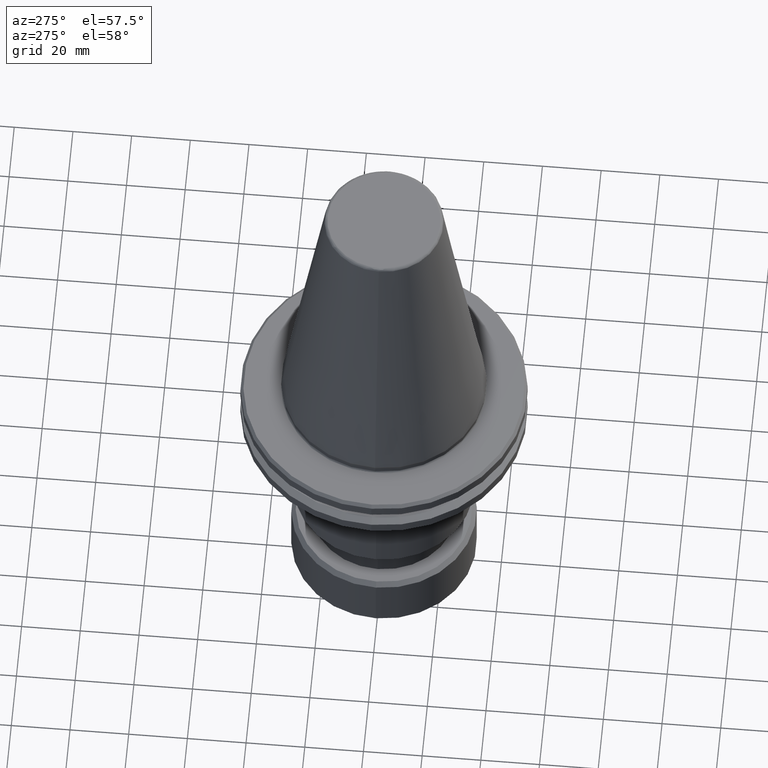
[diagram: clean part render]
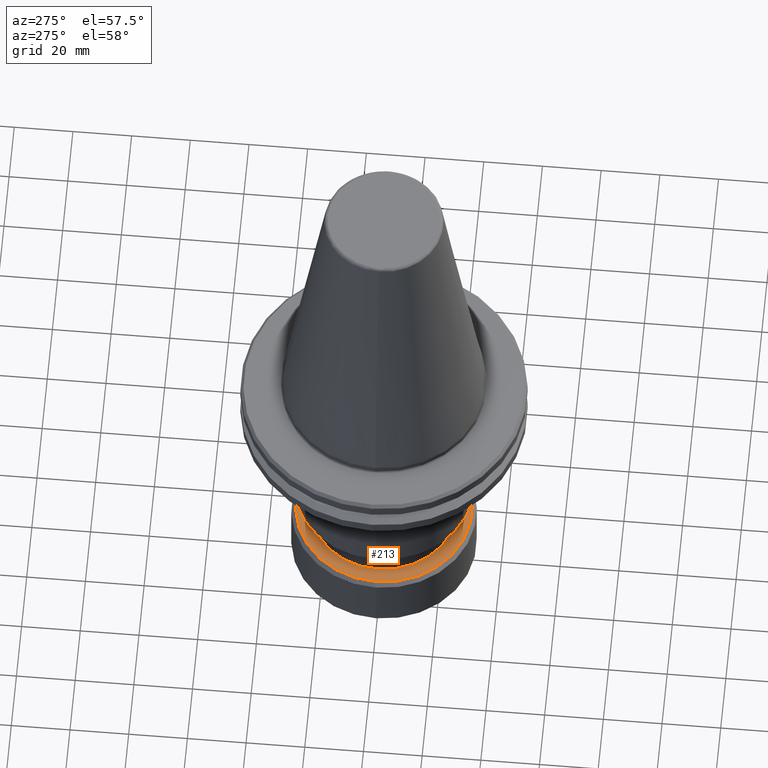
[diagram: same view with one face highlighted and labeled with its STEP entity id]
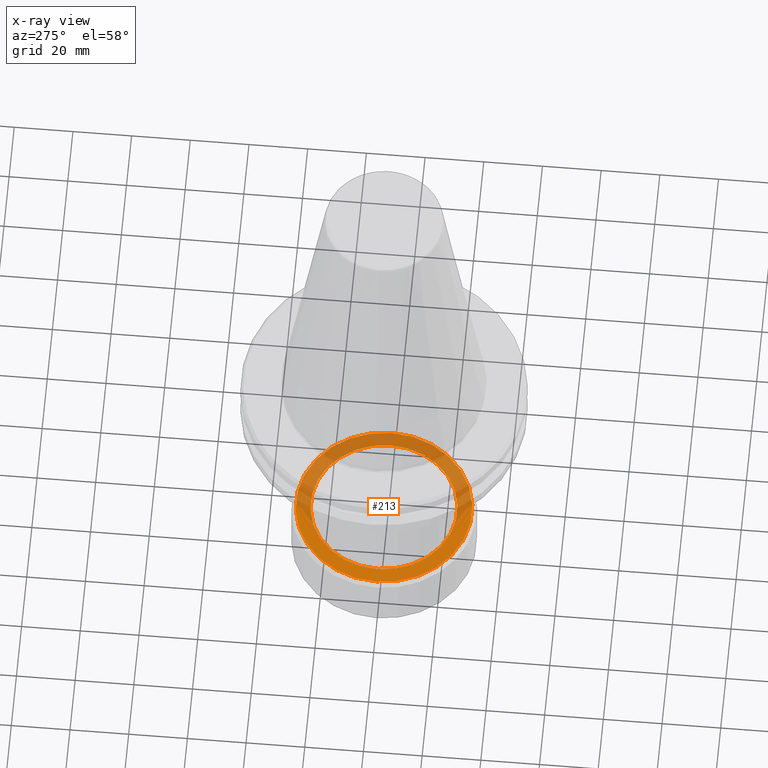
[diagram: x-ray of the same camera — body ghosted, the highlighted face saturated]
A machine part, auxiliary view. The second image highlights one B-rep face of the part: STEP entity #213.
The next image is the same camera in x-ray: the body ghosted, the highlighted face saturated — about 52% of this face is hidden behind the body in this view.
In plain terms, the highlighted planar face has unit normal (0, 0, 1).
Its self-contained STEP definition (entity closure, byte-faithful):
#20 = FACE_OUTER_BOUND ( 'NONE', #1760, .T. ) ;
#186 = CIRCLE ( 'NONE', #986, 24.95000000000013800 ) ;
#213 = ADVANCED_FACE ( 'NONE', ( #1240, #20 ), #1055, .T. ) ;
#227 = CARTESIAN_POINT ( 'NONE',  ( -24.95000000000013800, 0.0000000000000000000, -79.50000000000000000 ) ) ;
#279 = CARTESIAN_POINT ( 'NONE',  ( 24.95000000000013800, 3.055493763872663300E-015, -79.50000000000000000 ) ) ;
#284 = DIRECTION ( 'NONE',  ( -1.000000000000000000, 0.0000000000000000000, 0.0000000000000000000 ) ) ;
#305 = DIRECTION ( 'NONE',  ( -1.000000000000000000, 0.0000000000000000000, 0.0000000000000000000 ) ) ;
#306 = DIRECTION ( 'NONE',  ( -0.0000000000000000000, -0.0000000000000000000, -1.000000000000000000 ) ) ;
#307 = CARTESIAN_POINT ( 'NONE',  ( 0.0000000000000000000, 0.0000000000000000000, -79.50000000000000000 ) ) ;
#346 = VERTEX_POINT ( 'NONE', #960 ) ;
#432 = AXIS2_PLACEMENT_3D ( 'NONE', #734, #733, #732 ) ;
#484 = VERTEX_POINT ( 'NONE', #830 ) ;
#542 = EDGE_CURVE ( 'NONE', #920, #1565, #546, .T. ) ;
#546 = CIRCLE ( 'NONE', #432, 24.95000000000013800 ) ;
#628 = ORIENTED_EDGE ( 'NONE', *, *, #1652, .T. ) ;
#704 = AXIS2_PLACEMENT_3D ( 'NONE', #307, #306, #305 ) ;
#732 = DIRECTION ( 'NONE',  ( -1.000000000000000000, 0.0000000000000000000, 0.0000000000000000000 ) ) ;
#733 = DIRECTION ( 'NONE',  ( -0.0000000000000000000, -0.0000000000000000000, -1.000000000000000000 ) ) ;
#734 = CARTESIAN_POINT ( 'NONE',  ( 0.0000000000000000000, 0.0000000000000000000, -79.50000000000000000 ) ) ;
#830 = CARTESIAN_POINT ( 'NONE',  ( 30.00000000000000000, 3.765788907378110500E-015, -79.50000000000000000 ) ) ;
#878 = EDGE_CURVE ( 'NONE', #346, #484, #2039, .T. ) ;
#920 = VERTEX_POINT ( 'NONE', #279 ) ;
#960 = CARTESIAN_POINT ( 'NONE',  ( -30.00000000000000000, 0.0000000000000000000, -79.50000000000000000 ) ) ;
#963 = AXIS2_PLACEMENT_3D ( 'NONE', #1468, #1051, #1046 ) ;
#986 = AXIS2_PLACEMENT_3D ( 'NONE', #2007, #2010, #2015 ) ;
#1046 = DIRECTION ( 'NONE',  ( 1.000000000000000000, 0.0000000000000000000, -0.0000000000000000000 ) ) ;
#1051 = DIRECTION ( 'NONE',  ( 0.0000000000000000000, 0.0000000000000000000, 1.000000000000000000 ) ) ;
#1055 = PLANE ( 'NONE',  #963 ) ;
#1240 = FACE_BOUND ( 'NONE', #2029, .T. ) ;
#1424 = DIRECTION ( 'NONE',  ( -0.0000000000000000000, -0.0000000000000000000, -1.000000000000000000 ) ) ;
#1428 = AXIS2_PLACEMENT_3D ( 'NONE', #1753, #1424, #284 ) ;
#1468 = CARTESIAN_POINT ( 'NONE',  ( 0.0000000000000000000, 0.0000000000000000000, -79.50000000000000000 ) ) ;
#1565 = VERTEX_POINT ( 'NONE', #227 ) ;
#1635 = ORIENTED_EDGE ( 'NONE', *, *, #2001, .F. ) ;
#1652 = EDGE_CURVE ( 'NONE', #1565, #920, #186, .T. ) ;
#1753 = CARTESIAN_POINT ( 'NONE',  ( 0.0000000000000000000, 0.0000000000000000000, -79.50000000000000000 ) ) ;
#1760 = EDGE_LOOP ( 'NONE', ( #1932, #1635 ) ) ;
#1896 = ORIENTED_EDGE ( 'NONE', *, *, #542, .T. ) ;
#1932 = ORIENTED_EDGE ( 'NONE', *, *, #878, .F. ) ;
#2000 = CIRCLE ( 'NONE', #1428, 30.00000000000000000 ) ;
#2001 = EDGE_CURVE ( 'NONE', #484, #346, #2000, .T. ) ;
#2007 = CARTESIAN_POINT ( 'NONE',  ( 0.0000000000000000000, 0.0000000000000000000, -79.50000000000000000 ) ) ;
#2010 = DIRECTION ( 'NONE',  ( -0.0000000000000000000, -0.0000000000000000000, -1.000000000000000000 ) ) ;
#2015 = DIRECTION ( 'NONE',  ( -1.000000000000000000, 0.0000000000000000000, 0.0000000000000000000 ) ) ;
#2029 = EDGE_LOOP ( 'NONE', ( #628, #1896 ) ) ;
#2039 = CIRCLE ( 'NONE', #704, 30.00000000000000000 ) ;